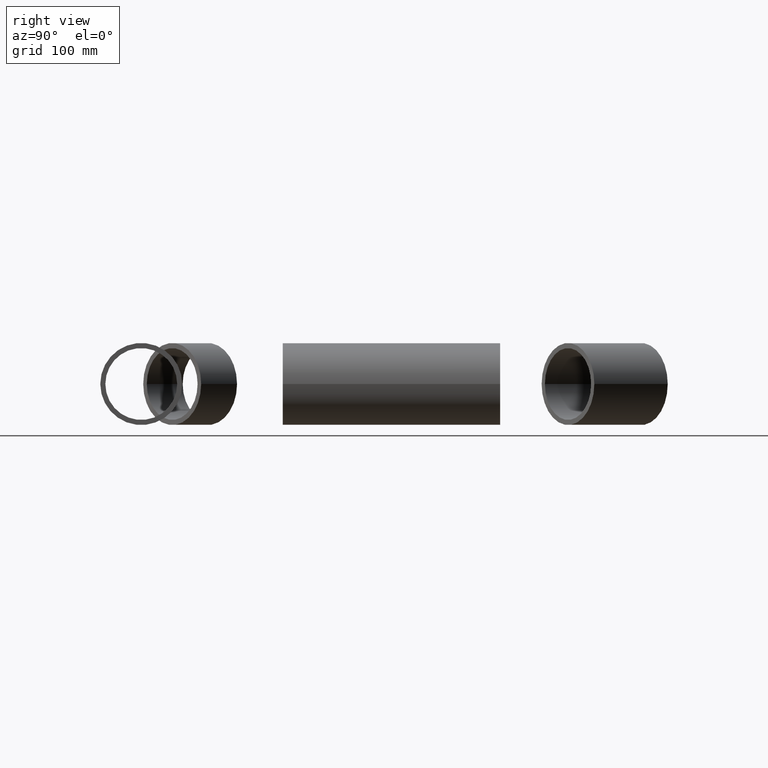
[diagram: clean part render]
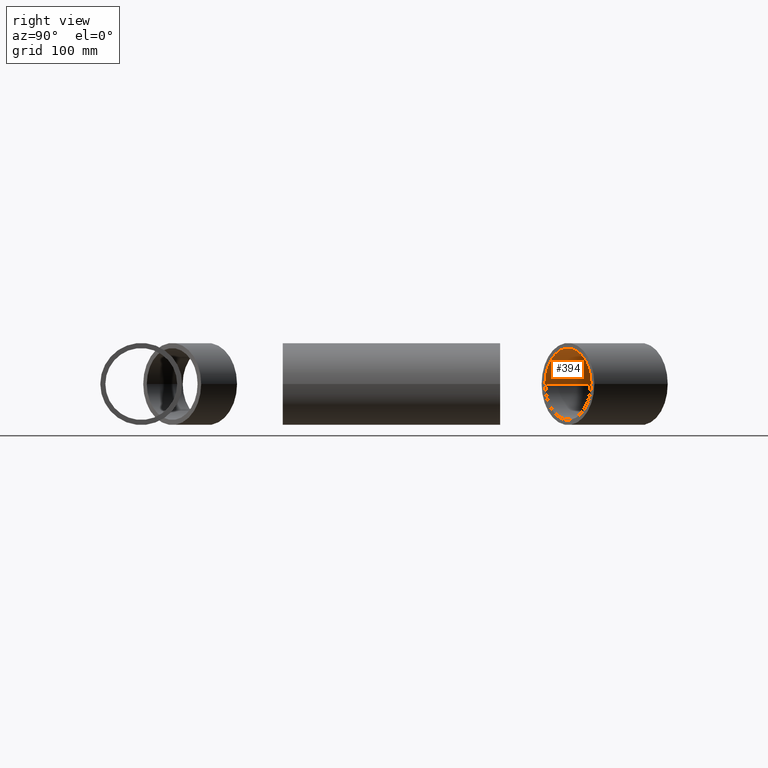
[diagram: same view with one face highlighted and labeled with its STEP entity id]
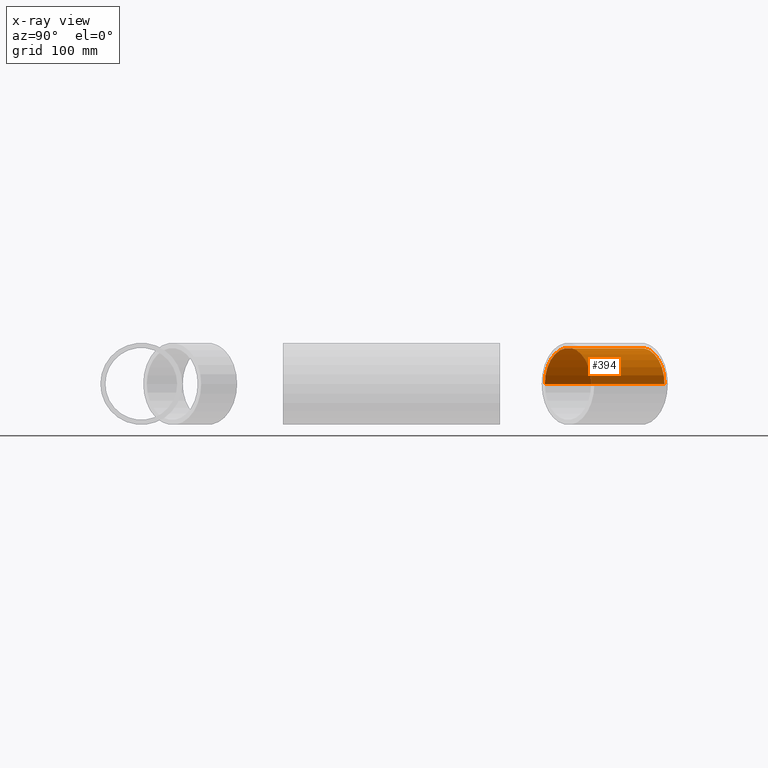
[diagram: x-ray of the same camera — body ghosted, the highlighted face saturated]
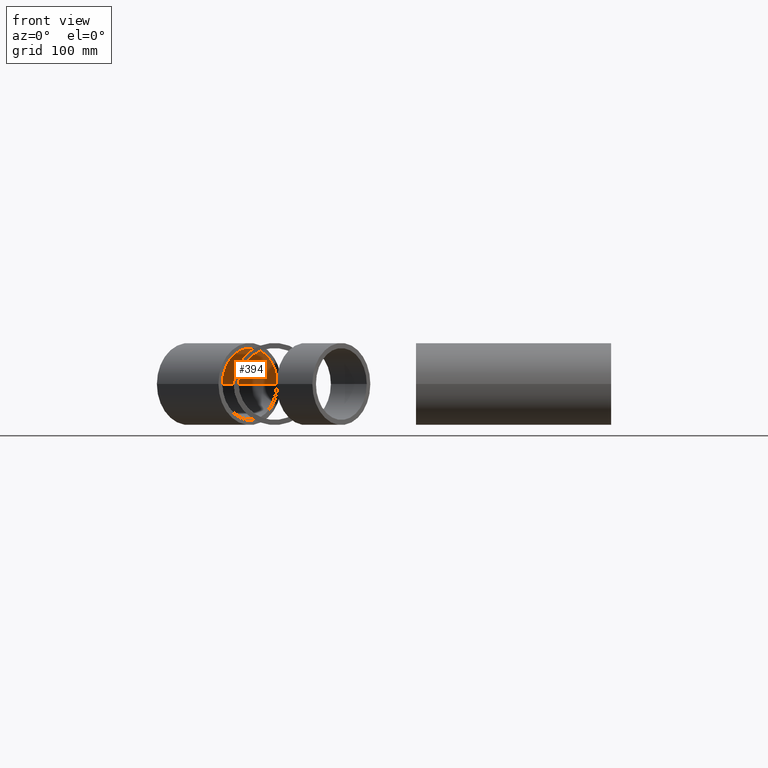
[diagram: same view with one face highlighted and labeled with its STEP entity id]
A machine part, right view. The second image highlights one B-rep face of the part: STEP entity #394.
The next image is the same camera in x-ray: the body ghosted, the highlighted face saturated — about 0% of this face is hidden behind the body in this view.
A second angle (front view) of the same face is appended — the face is thin or edge-on in the first view.
In plain terms, the highlighted cylindrical surface (edge-blend (fillet) strip) has radius 38.95 mm, axis along (0.6428, -0.766, -0).
Its self-contained STEP definition (entity closure, byte-faithful):
#15 = DIRECTION ( 'NONE',  ( -0.7660444431189763481, -0.6427876096865413613, 0.000000000000000000 ) ) ;
#18 = CARTESIAN_POINT ( 'NONE',  ( -352.7675603857644546, 542.3395555688102831, 0.000000000000000000 ) ) ;
#29 = DIRECTION ( 'NONE',  ( -0.7660444431189763481, -0.6427876096865413613, 0.000000000000000000 ) ) ;
#35 = EDGE_CURVE ( 'NONE', #525, #100, #209, .T. ) ;
#70 = CARTESIAN_POINT ( 'NONE',  ( -322.9301293262802801, 567.3761329661010677, 0.000000000000000000 ) ) ;
#100 = VERTEX_POINT ( 'NONE', #365 ) ;
#120 = DIRECTION ( 'NONE',  ( 0.6427876096865412503, -0.7660444431189763481, -0.000000000000000000 ) ) ;
#121 = EDGE_LOOP ( 'NONE', ( #302, #340, #563, #165 ) ) ;
#141 = EDGE_CURVE ( 'NONE', #100, #385, #283, .T. ) ;
#165 = ORIENTED_EDGE ( 'NONE', *, *, #141, .F. ) ;
#199 = DIRECTION ( 'NONE',  ( 0.6427876096865413613, -0.7660444431189764591, -0.000000000000000000 ) ) ;
#209 = LINE ( 'NONE', #371, #397 ) ;
#213 = CARTESIAN_POINT ( 'NONE',  ( -382.6049914452486291, 517.3029781715194986, 4.769999282678943960E-15 ) ) ;
#257 = CARTESIAN_POINT ( 'NONE',  ( -352.7675603857644546, 542.3395555688102831, 0.000000000000000000 ) ) ;
#264 = FACE_OUTER_BOUND ( 'NONE', #121, .T. ) ;
#269 = CARTESIAN_POINT ( 'NONE',  ( -322.9301293262802801, 567.3761329661010677, 0.000000000000000000 ) ) ;
#283 = CIRCLE ( 'NONE', #482, 38.95000000000004547 ) ;
#287 = EDGE_CURVE ( 'NONE', #525, #439, #328, .T. ) ;
#302 = ORIENTED_EDGE ( 'NONE', *, *, #35, .F. ) ;
#309 = AXIS2_PLACEMENT_3D ( 'NONE', #18, #677, #15 ) ;
#328 = CIRCLE ( 'NONE', #309, 38.95000000000004547 ) ;
#340 = ORIENTED_EDGE ( 'NONE', *, *, #287, .T. ) ;
#365 = CARTESIAN_POINT ( 'NONE',  ( -315.8207788049911073, 437.7126528289173848, 4.769999282678943960E-15 ) ) ;
#371 = CARTESIAN_POINT ( 'NONE',  ( -382.6049914452486291, 517.3029781715194986, 4.769999282678943960E-15 ) ) ;
#378 = DIRECTION ( 'NONE',  ( 0.6427876096865412503, -0.7660444431189763481, -0.000000000000000000 ) ) ;
#385 = VERTEX_POINT ( 'NONE', #595 ) ;
#394 = ADVANCED_FACE ( 'NONE', ( #264 ), #487, .F. ) ;
#397 = VECTOR ( 'NONE', #378, 1000.000000000000114 ) ;
#439 = VERTEX_POINT ( 'NONE', #269 ) ;
#482 = AXIS2_PLACEMENT_3D ( 'NONE', #644, #534, #29 ) ;
#487 = CYLINDRICAL_SURFACE ( 'NONE', #709, 38.95000000000004547 ) ;
#525 = VERTEX_POINT ( 'NONE', #213 ) ;
#534 = DIRECTION ( 'NONE',  ( -0.6427876096865413613, 0.7660444431189764591, 0.000000000000000000 ) ) ;
#563 = ORIENTED_EDGE ( 'NONE', *, *, #702, .T. ) ;
#574 = LINE ( 'NONE', #70, #637 ) ;
#595 = CARTESIAN_POINT ( 'NONE',  ( -256.1459166860227583, 487.7858076234990108, 0.000000000000000000 ) ) ;
#637 = VECTOR ( 'NONE', #120, 1000.000000000000114 ) ;
#644 = CARTESIAN_POINT ( 'NONE',  ( -285.9833477455069328, 462.7492302262081694, 0.000000000000000000 ) ) ;
#651 = DIRECTION ( 'NONE',  ( 0.7660444431189763481, 0.6427876096865413613, 0.000000000000000000 ) ) ;
#677 = DIRECTION ( 'NONE',  ( -0.6427876096865413613, 0.7660444431189764591, 0.000000000000000000 ) ) ;
#702 = EDGE_CURVE ( 'NONE', #439, #385, #574, .T. ) ;
#709 = AXIS2_PLACEMENT_3D ( 'NONE', #257, #199, #651 ) ;